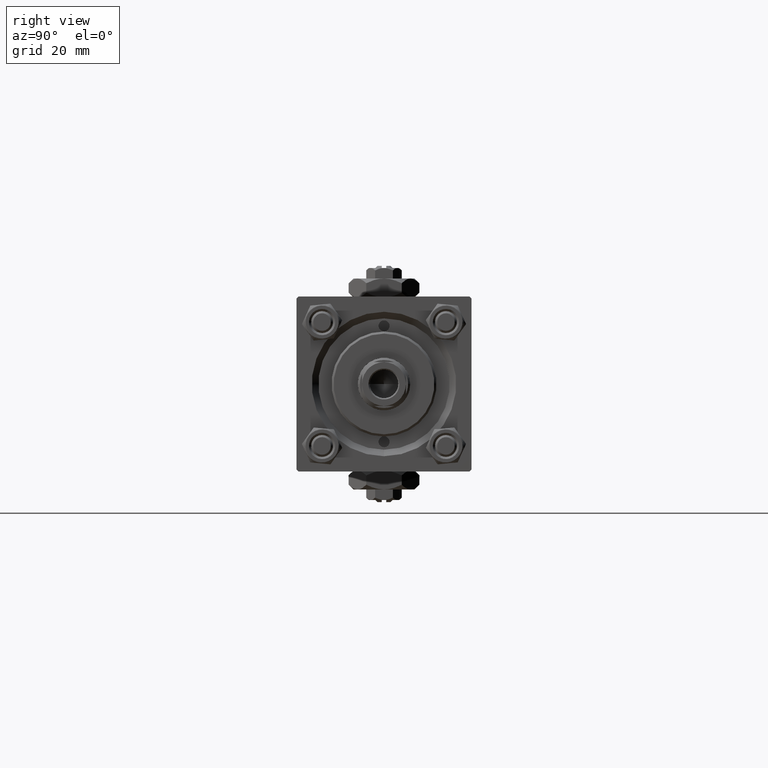
[diagram: clean part render]
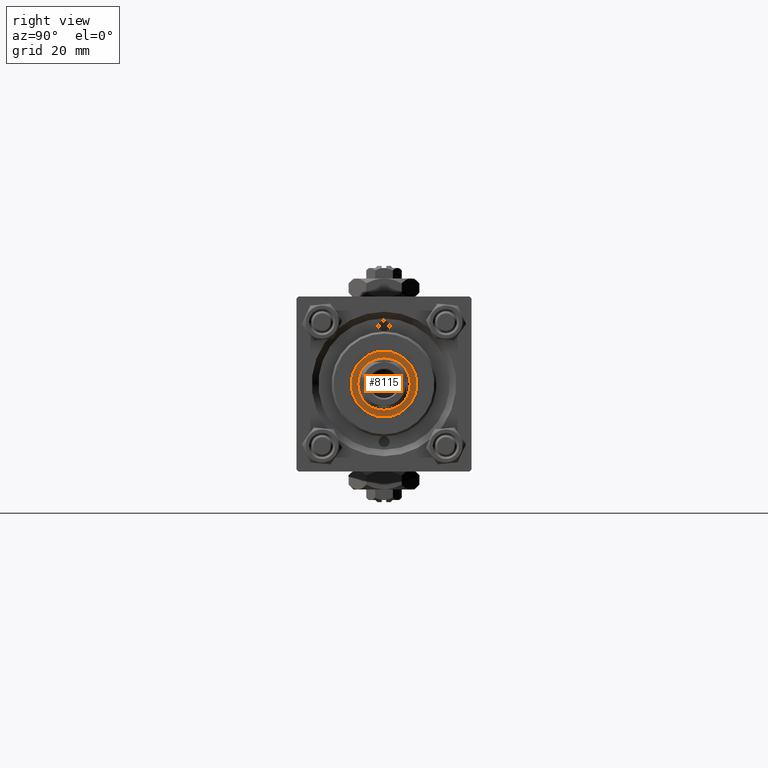
[diagram: same view with one face highlighted and labeled with its STEP entity id]
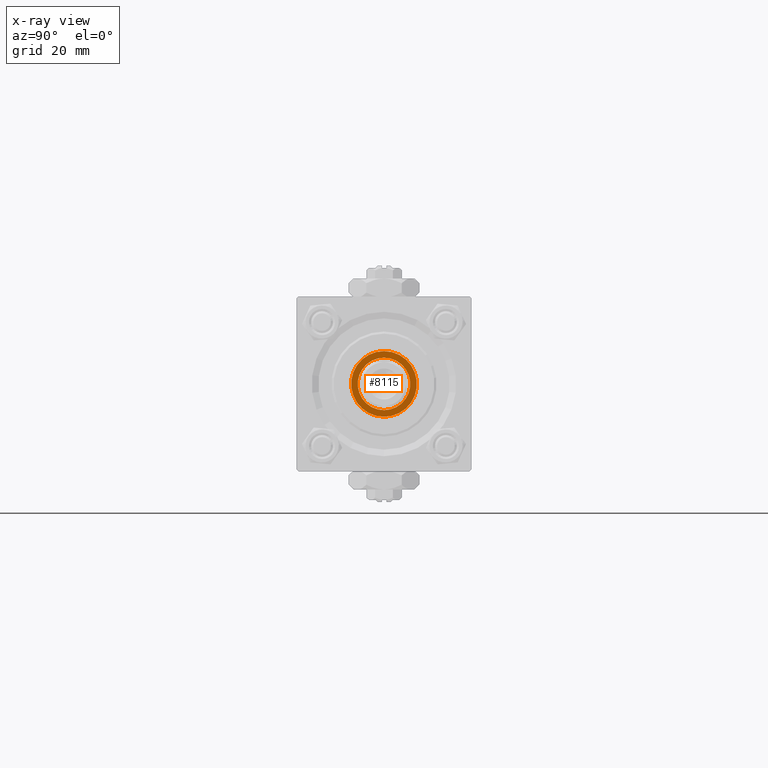
[diagram: x-ray of the same camera — body ghosted, the highlighted face saturated]
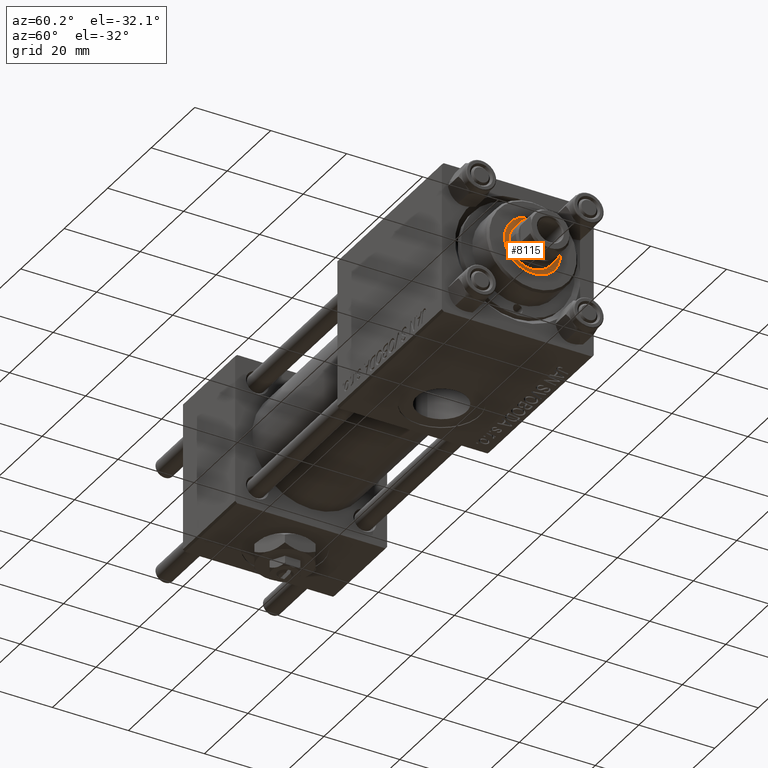
[diagram: same view with one face highlighted and labeled with its STEP entity id]
A machine part, right view. The second image highlights one B-rep face of the part: STEP entity #8115.
The next image is the same camera in x-ray: the body ghosted, the highlighted face saturated — about 0% of this face is hidden behind the body in this view.
A second angle (auxiliary view) of the same face is appended — the face is thin or edge-on in the first view.
In plain terms, the highlighted planar face has unit normal (1, 0, -0).
Its self-contained STEP definition (entity closure, byte-faithful):
#470 = DIRECTION ( 'NONE',  ( 1.000000000000000000, 0.000000000000000000, 0.000000000000000000 ) ) ;
#1467 = DIRECTION ( 'NONE',  ( 1.000000000000000000, 0.000000000000000000, -0.000000000000000000 ) ) ;
#2574 = CARTESIAN_POINT ( 'NONE',  ( 7.500000000000000888, 0.000000000000000000, 35.20000000000000284 ) ) ;
#5008 = ORIENTED_EDGE ( 'NONE', *, *, #49215, .T. ) ;
#5049 = EDGE_CURVE ( 'NONE', #38441, #29504, #7870, .T. ) ;
#5550 = AXIS2_PLACEMENT_3D ( 'NONE', #45487, #42303, #50187 ) ;
#5570 = CARTESIAN_POINT ( 'NONE',  ( 0.000000000000000000, 0.000000000000000000, 35.20000000000000284 ) ) ;
#5815 = DIRECTION ( 'NONE',  ( 1.000000000000000000, 0.000000000000000000, 0.000000000000000000 ) ) ;
#7870 = CIRCLE ( 'NONE', #38084, 6.000000000000000888 ) ;
#8115 = ADVANCED_FACE ( 'NONE', ( #34281, #37463 ), #41394, .T. ) ;
#10273 = DIRECTION ( 'NONE',  ( 0.000000000000000000, 0.000000000000000000, 1.000000000000000000 ) ) ;
#10391 = CARTESIAN_POINT ( 'NONE',  ( 0.000000000000000000, 0.000000000000000000, 35.20000000000000284 ) ) ;
#13098 = DIRECTION ( 'NONE',  ( 0.000000000000000000, 0.000000000000000000, 1.000000000000000000 ) ) ;
#14498 = EDGE_LOOP ( 'NONE', ( #44097, #41534 ) ) ;
#14937 = EDGE_CURVE ( 'NONE', #29504, #38441, #35724, .T. ) ;
#14970 = ORIENTED_EDGE ( 'NONE', *, *, #26190, .T. ) ;
#16418 = CARTESIAN_POINT ( 'NONE',  ( -6.000000000000000888, 7.347880794884119736E-16, 35.20000000000000284 ) ) ;
#16524 = CARTESIAN_POINT ( 'NONE',  ( -7.500000000000000888, 9.184850993605149917E-16, 35.20000000000000284 ) ) ;
#17663 = DIRECTION ( 'NONE',  ( -0.000000000000000000, -0.000000000000000000, -1.000000000000000000 ) ) ;
#17874 = EDGE_LOOP ( 'NONE', ( #5008, #14970 ) ) ;
#21595 = CARTESIAN_POINT ( 'NONE',  ( 0.000000000000000000, 0.000000000000000000, 35.20000000000000284 ) ) ;
#22108 = AXIS2_PLACEMENT_3D ( 'NONE', #45399, #13098, #470 ) ;
#25314 = VERTEX_POINT ( 'NONE', #2574 ) ;
#25723 = AXIS2_PLACEMENT_3D ( 'NONE', #21595, #10273, #5815 ) ;
#26190 = EDGE_CURVE ( 'NONE', #26199, #25314, #51435, .T. ) ;
#26199 = VERTEX_POINT ( 'NONE', #16524 ) ;
#29504 = VERTEX_POINT ( 'NONE', #16418 ) ;
#34281 = FACE_OUTER_BOUND ( 'NONE', #17874, .T. ) ;
#35490 = AXIS2_PLACEMENT_3D ( 'NONE', #10391, #49540, #1467 ) ;
#35724 = CIRCLE ( 'NONE', #5550, 6.000000000000000888 ) ;
#35882 = CARTESIAN_POINT ( 'NONE',  ( 6.000000000000000888, 0.000000000000000000, 35.20000000000000284 ) ) ;
#37463 = FACE_BOUND ( 'NONE', #14498, .T. ) ;
#38084 = AXIS2_PLACEMENT_3D ( 'NONE', #5570, #17663, #45503 ) ;
#38441 = VERTEX_POINT ( 'NONE', #35882 ) ;
#41394 = PLANE ( 'NONE',  #35490 ) ;
#41534 = ORIENTED_EDGE ( 'NONE', *, *, #14937, .T. ) ;
#42303 = DIRECTION ( 'NONE',  ( -0.000000000000000000, -0.000000000000000000, -1.000000000000000000 ) ) ;
#44097 = ORIENTED_EDGE ( 'NONE', *, *, #5049, .T. ) ;
#45399 = CARTESIAN_POINT ( 'NONE',  ( 0.000000000000000000, 0.000000000000000000, 35.20000000000000284 ) ) ;
#45487 = CARTESIAN_POINT ( 'NONE',  ( 0.000000000000000000, 0.000000000000000000, 35.20000000000000284 ) ) ;
#45503 = DIRECTION ( 'NONE',  ( 1.000000000000000000, 0.000000000000000000, 0.000000000000000000 ) ) ;
#48361 = CIRCLE ( 'NONE', #25723, 7.500000000000000888 ) ;
#49215 = EDGE_CURVE ( 'NONE', #25314, #26199, #48361, .T. ) ;
#49540 = DIRECTION ( 'NONE',  ( 0.000000000000000000, 0.000000000000000000, 1.000000000000000000 ) ) ;
#50187 = DIRECTION ( 'NONE',  ( 1.000000000000000000, 0.000000000000000000, 0.000000000000000000 ) ) ;
#51435 = CIRCLE ( 'NONE', #22108, 7.500000000000000888 ) ;